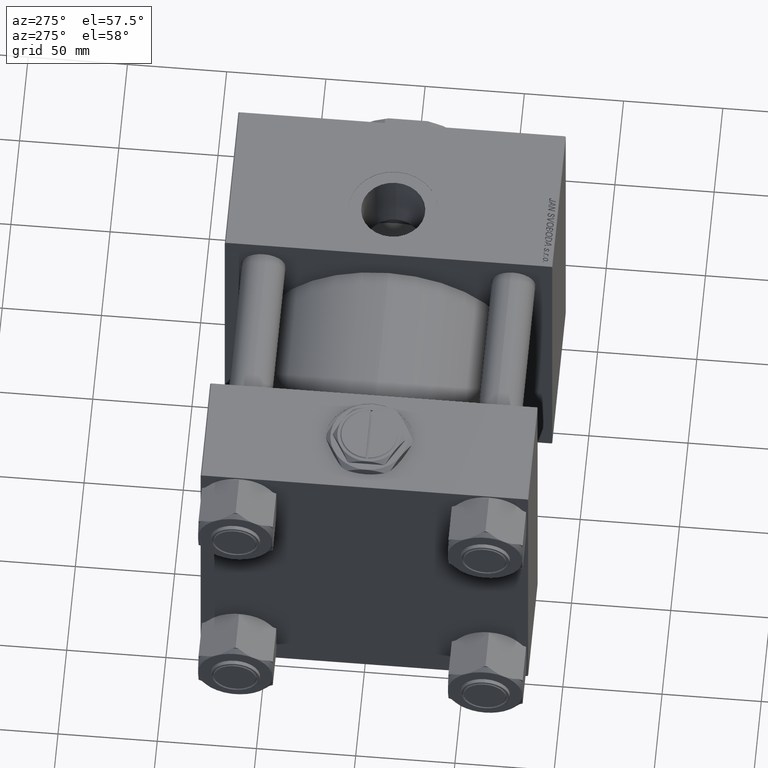
[diagram: clean part render]
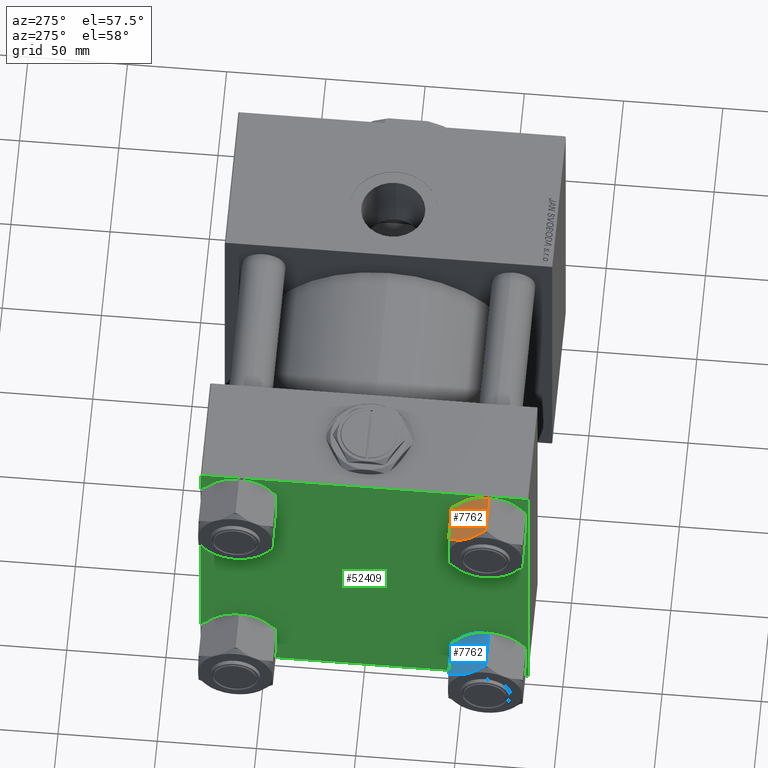
[diagram: same view with three faces highlighted in distinct colors, each labeled with its STEP entity id]
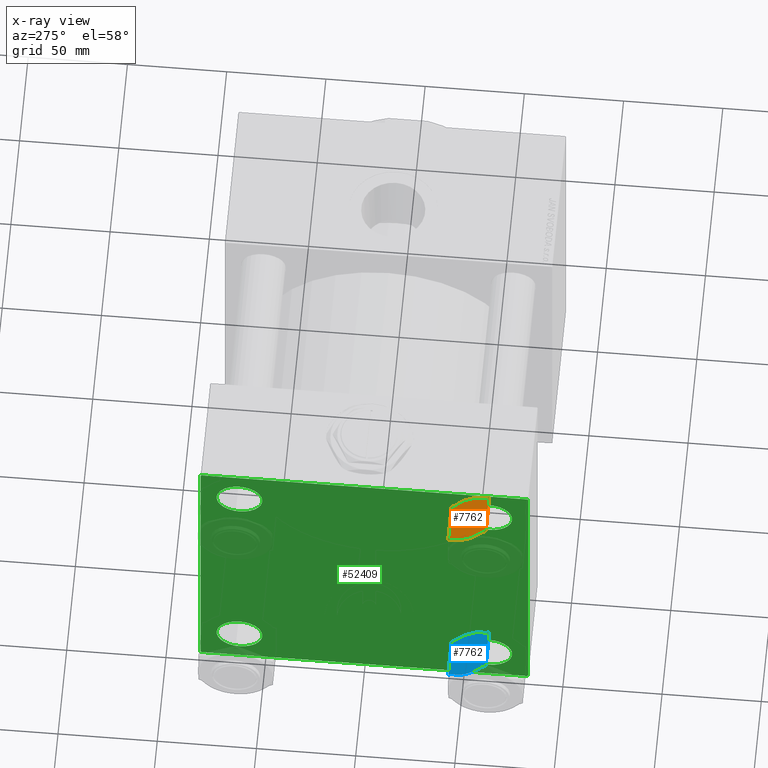
[diagram: x-ray of the same camera — body ghosted, the three highlighted faces saturated]
A machine part, auxiliary view with three faces highlighted in distinct colors.
The next image is the same camera in x-ray (body ghosted, the three faces saturated) — at least one of them is partly hidden behind the body in this view.
Their STEP definitions:

[orange] entity #7762 — the highlighted planar face has unit normal (-0, -0.5, -0.866).
#28 = DIRECTION ( 'NONE',  ( -0.000000000000000000, -0.000000000000000000, 1.000000000000000000 ) ) ;
#32 = CARTESIAN_POINT ( 'NONE',  ( -11.77388873931088220, -17.05396496048960842, -2.000000000000000000 ) ) ;
#289 = EDGE_CURVE ( 'NONE', #42513, #12380, #19918, .T. ) ;
#690 = ORIENTED_EDGE ( 'NONE', *, *, #13788, .F. ) ;
#2015 = CARTESIAN_POINT ( 'NONE',  ( -17.73599980468855009, -6.727285674886870126, -23.80918115964520965 ) ) ;
#2282 = CARTESIAN_POINT ( 'NONE',  ( -19.94246781890516118, -2.905570968988092861, -22.58212083167677875 ) ) ;
#3264 = ORIENTED_EDGE ( 'NONE', *, *, #289, .F. ) ;
#3309 = CARTESIAN_POINT ( 'NONE',  ( -19.94878361794604515, -2.894631684158861074, -1.393668941363769287 ) ) ;
#4403 = B_SPLINE_CURVE_WITH_KNOTS ( 'NONE', 3,
 ( #33030, #49237, #12818, #29043, #42765, #18585, #7121, #19115, #18322, #11111 ),
 .UNSPECIFIED., .F., .F.,
 ( 4, 2, 2, 2, 4 ),
 ( 5.007809737530463276E-07, 0.004555175037830402722, 0.006832512166258727059, 0.007971180730472890094, 0.009109849294687053997 ),
 .UNSPECIFIED. ) ;
#5165 = VERTEX_POINT ( 'NONE', #37017 ) ;
#5466 = VECTOR ( 'NONE', #21141, 1000.000000000000000 ) ;
#6129 = FACE_OUTER_BOUND ( 'NONE', #52000, .T. ) ;
#6216 = VERTEX_POINT ( 'NONE', #24799 ) ;
#6321 = CARTESIAN_POINT ( 'NONE',  ( -20.65611126068911929, -1.669504269329938229, -22.00000000000000000 ) ) ;
#7121 = CARTESIAN_POINT ( 'NONE',  ( -15.44401067499412861, -10.69712729791319283, -23.94054132287643810 ) ) ;
#7298 = CARTESIAN_POINT ( 'NONE',  ( -20.65611126068912284, -1.669504269329930457, -2.000000000000000000 ) ) ;
#7480 = CARTESIAN_POINT ( 'NONE',  ( -12.48753218109485275, -15.81789826083145378, -1.417879168323221251 ) ) ;
#7762 = ADVANCED_FACE ( 'NONE', ( #6129 ), #34337, .F. ) ;
#8244 = CARTESIAN_POINT ( 'NONE',  ( -10.81000000000000227, -18.72346922981957107, -22.00000000000000000 ) ) ;
#8501 = DIRECTION ( 'NONE',  ( -0.4999999999999993894, 0.8660254037844389297, 0.000000000000000000 ) ) ;
#10005 = CARTESIAN_POINT ( 'NONE',  ( -18.84657086838735296, -4.803720167144746256, -23.28765129395944911 ) ) ;
#10140 = EDGE_CURVE ( 'NONE', #6216, #13995, #11650, .T. ) ;
#11111 = CARTESIAN_POINT ( 'NONE',  ( -16.21500000000001052, -9.361734614909773100, -24.00000000000000000 ) ) ;
#11650 = LINE ( 'NONE', #23882, #27896 ) ;
#11995 = CARTESIAN_POINT ( 'NONE',  ( -13.21634051119548836, -14.55556520411771970, -0.9250850388960920601 ) ) ;
#12174 = VERTEX_POINT ( 'NONE', #30136 ) ;
#12232 = ORIENTED_EDGE ( 'NONE', *, *, #16636, .F. ) ;
#12380 = VERTEX_POINT ( 'NONE', #6321 ) ;
#12528 = LINE ( 'NONE', #47901, #15639 ) ;
#12818 = CARTESIAN_POINT ( 'NONE',  ( -13.20154625327793774, -14.58118961049119022, -23.10638014572221621 ) ) ;
#13788 = EDGE_CURVE ( 'NONE', #40225, #5165, #38549, .T. ) ;
#13995 = VERTEX_POINT ( 'NONE', #42092 ) ;
#15287 = CARTESIAN_POINT ( 'NONE',  ( -16.60104632518793011, -8.693082765609036144, -0.01197337667081199535 ) ) ;
#15564 = VECTOR ( 'NONE', #28, 1000.000000000000000 ) ;
#15639 = VECTOR ( 'NONE', #32205, 1000.000000000000114 ) ;
#15829 = ORIENTED_EDGE ( 'NONE', *, *, #29970, .F. ) ;
#16127 = AXIS2_PLACEMENT_3D ( 'NONE', #22097, #46274, #25556 ) ;
#16636 = EDGE_CURVE ( 'NONE', #38052, #40225, #12528, .T. ) ;
#16705 = EDGE_CURVE ( 'NONE', #5165, #52386, #38364, .T. ) ;
#16968 = CARTESIAN_POINT ( 'NONE',  ( -11.77388873931088220, -17.05396496048960842, -2.000000000000000000 ) ) ;
#17528 = VERTEX_POINT ( 'NONE', #23453 ) ;
#18322 = CARTESIAN_POINT ( 'NONE',  ( -16.02284832181304708, -9.694551084289205534, -24.00000000000001066 ) ) ;
#18585 = CARTESIAN_POINT ( 'NONE',  ( -15.25296234352183156, -11.02803271472447300, -23.90516550165012788 ) ) ;
#18792 = CARTESIAN_POINT ( 'NONE',  ( -20.65611126068911929, -1.669504269329938229, -22.00000000000000000 ) ) ;
#19024 = CARTESIAN_POINT ( 'NONE',  ( -19.22845374672207441, -4.142279619328344431, -0.8936198542777825660 ) ) ;
#19115 = CARTESIAN_POINT ( 'NONE',  ( -15.82895367481208737, -10.03038646421050650, -23.98802662332918700 ) ) ;
#19127 = DIRECTION ( 'NONE',  ( -0.4999999999999993894, 0.8660254037844389297, 0.000000000000000000 ) ) ;
#19553 = CARTESIAN_POINT ( 'NONE',  ( -17.17703765647818770, -7.695436515095067875, -0.09483449834988089133 ) ) ;
#19811 = CARTESIAN_POINT ( 'NONE',  ( -18.12021770021052802, -6.061800758665592426, -0.3703068632035558805 ) ) ;
#19918 = B_SPLINE_CURVE_WITH_KNOTS ( 'NONE', 3,
 ( #22246, #46424, #2015, #10005, #46158, #2282, #25704, #18792 ),
 .UNSPECIFIED., .F., .F.,
 ( 4, 2, 2, 4 ),
 ( 0.009109849294687053997, 0.01366157320126713468, 0.01593743515455717588, 0.01821329710784721362 ),
 .UNSPECIFIED. ) ;
#21141 = DIRECTION ( 'NONE',  ( -0.000000000000000000, -0.000000000000000000, 1.000000000000000000 ) ) ;
#22097 = CARTESIAN_POINT ( 'NONE',  ( -10.81000000000000227, -18.72346922981957107, -24.00000000000000000 ) ) ;
#22246 = CARTESIAN_POINT ( 'NONE',  ( -16.21500000000001052, -9.361734614909773100, -24.00000000000000000 ) ) ;
#23453 = CARTESIAN_POINT ( 'NONE',  ( -10.81000000000000227, -18.72346922981957107, -2.000000000000001776 ) ) ;
#23882 = CARTESIAN_POINT ( 'NONE',  ( -10.81000000000000227, -18.72346922981957107, -22.00000000000000000 ) ) ;
#23966 = CARTESIAN_POINT ( 'NONE',  ( -14.69400019531146029, -11.99618355493266897, -0.1908188403547822765 ) ) ;
#24504 = ORIENTED_EDGE ( 'NONE', *, *, #47738, .T. ) ;
#24759 = LINE ( 'NONE', #45461, #15564 ) ;
#24799 = CARTESIAN_POINT ( 'NONE',  ( -10.81000000000000227, -18.72346922981957107, -22.00000000000000000 ) ) ;
#25556 = DIRECTION ( 'NONE',  ( -0.4999999999999993894, 0.8660254037844389297, 0.000000000000000000 ) ) ;
#25704 = CARTESIAN_POINT ( 'NONE',  ( -20.30204076991168449, -2.282772348817324382, -22.30351413196914478 ) ) ;
#26723 = CARTESIAN_POINT ( 'NONE',  ( -17.74616263960890805, -6.709683128455873558, -0.2338220771833849909 ) ) ;
#27696 = CARTESIAN_POINT ( 'NONE',  ( -16.21500000000001762, -9.361734614909776653, 0.000000000000000000 ) ) ;
#27896 = VECTOR ( 'NONE', #19127, 1000.000000000000114 ) ;
#28221 = CARTESIAN_POINT ( 'NONE',  ( -12.12795923008832943, -16.44069688100223203, -1.696485868030861432 ) ) ;
#28277 = ORIENTED_EDGE ( 'NONE', *, *, #28282, .F. ) ;
#28282 = EDGE_CURVE ( 'NONE', #13995, #42513, #4403, .T. ) ;
#28794 = ORIENTED_EDGE ( 'NONE', *, *, #46213, .F. ) ;
#29043 = CARTESIAN_POINT ( 'NONE',  ( -14.30978229978947347, -12.66166847115393956, -23.62969313679643335 ) ) ;
#29113 = LINE ( 'NONE', #48789, #5466 ) ;
#29233 = VECTOR ( 'NONE', #8501, 1000.000000000000114 ) ;
#29970 = EDGE_CURVE ( 'NONE', #52386, #17528, #51166, .T. ) ;
#30136 = CARTESIAN_POINT ( 'NONE',  ( -21.62000000000000099, 1.669698520835173435E-14, -22.00000000000000000 ) ) ;
#30970 = DIRECTION ( 'NONE',  ( 0.4999999999999993894, -0.8660254037844389297, 0.000000000000000000 ) ) ;
#32205 = DIRECTION ( 'NONE',  ( 0.4999999999999993894, -0.8660254037844389297, 0.000000000000000000 ) ) ;
#33030 = CARTESIAN_POINT ( 'NONE',  ( -11.77388873931088575, -17.05396496048960131, -22.00000000000000000 ) ) ;
#33820 = ORIENTED_EDGE ( 'NONE', *, *, #49885, .F. ) ;
#33822 = VECTOR ( 'NONE', #30970, 1000.000000000000114 ) ;
#34337 = PLANE ( 'NONE',  #16127 ) ;
#35236 = CARTESIAN_POINT ( 'NONE',  ( -16.21500000000001762, -9.361734614909776653, 0.000000000000000000 ) ) ;
#37017 = CARTESIAN_POINT ( 'NONE',  ( -16.21500000000001762, -9.361734614909776653, 0.000000000000000000 ) ) ;
#38052 = VERTEX_POINT ( 'NONE', #50648 ) ;
#38364 = B_SPLINE_CURVE_WITH_KNOTS ( 'NONE', 3,
 ( #27696, #43904, #23966, #40982, #11995, #7480, #28221, #32 ),
 .UNSPECIFIED., .F., .F.,
 ( 4, 2, 2, 4 ),
 ( 0.009109849294687066140, 0.01366157320126715896, 0.01593743515455720364, 0.01821329710784724484 ),
 .UNSPECIFIED. ) ;
#38549 = B_SPLINE_CURVE_WITH_KNOTS ( 'NONE', 3,
 ( #7298, #3309, #19024, #19811, #26723, #19553, #43726, #15287, #47186, #35236 ),
 .UNSPECIFIED., .F., .F.,
 ( 4, 2, 2, 2, 4 ),
 ( 5.007809737585758646E-07, 0.004555175037830412263, 0.006832512166258740936, 0.007971180730472903972, 0.009109849294687066140 ),
 .UNSPECIFIED. ) ;
#40225 = VERTEX_POINT ( 'NONE', #50202 ) ;
#40982 = CARTESIAN_POINT ( 'NONE',  ( -13.58342913161266807, -13.91974906267480350, -0.7123487060405448990 ) ) ;
#42092 = CARTESIAN_POINT ( 'NONE',  ( -11.77388873931088575, -17.05396496048960131, -22.00000000000000000 ) ) ;
#42513 = VERTEX_POINT ( 'NONE', #44661 ) ;
#42765 = CARTESIAN_POINT ( 'NONE',  ( -14.68383736039110588, -12.01378610136366376, -23.76617792281660613 ) ) ;
#43554 = ORIENTED_EDGE ( 'NONE', *, *, #16705, .F. ) ;
#43726 = CARTESIAN_POINT ( 'NONE',  ( -16.98598932500589598, -8.026341931906348037, -0.05945867712355460549 ) ) ;
#43904 = CARTESIAN_POINT ( 'NONE',  ( -15.44689116237993076, -10.69213814741041624, 1.408785197873352008E-14 ) ) ;
#44661 = CARTESIAN_POINT ( 'NONE',  ( -16.21500000000001052, -9.361734614909773100, -24.00000000000000000 ) ) ;
#45461 = CARTESIAN_POINT ( 'NONE',  ( -10.81000000000000227, -18.72346922981957107, -24.00000000000000000 ) ) ;
#46158 = CARTESIAN_POINT ( 'NONE',  ( -19.21365948880452379, -4.167904025701830051, -23.07491496110390017 ) ) ;
#46213 = EDGE_CURVE ( 'NONE', #12174, #38052, #29113, .T. ) ;
#46274 = DIRECTION ( 'NONE',  ( 0.8660254037844390407, 0.4999999999999994449, 0.000000000000000000 ) ) ;
#46424 = CARTESIAN_POINT ( 'NONE',  ( -16.98310883762008316, -8.031331082409129962, -24.00000000000001066 ) ) ;
#47186 = CARTESIAN_POINT ( 'NONE',  ( -16.40715167818697040, -9.028918145530337114, 1.384475352287154220E-14 ) ) ;
#47738 = EDGE_CURVE ( 'NONE', #6216, #17528, #24759, .T. ) ;
#47901 = CARTESIAN_POINT ( 'NONE',  ( -10.81000000000000227, -18.72346922981957107, -2.000000000000001776 ) ) ;
#48789 = CARTESIAN_POINT ( 'NONE',  ( -21.62000000000000099, 1.669698520835173435E-14, -24.00000000000000000 ) ) ;
#49041 = ORIENTED_EDGE ( 'NONE', *, *, #10140, .F. ) ;
#49237 = CARTESIAN_POINT ( 'NONE',  ( -12.48121638205396522, -15.82883754566067402, -22.60633105863623271 ) ) ;
#49885 = EDGE_CURVE ( 'NONE', #12380, #12174, #51667, .T. ) ;
#50202 = CARTESIAN_POINT ( 'NONE',  ( -20.65611126068912284, -1.669504269329930457, -2.000000000000000000 ) ) ;
#50648 = CARTESIAN_POINT ( 'NONE',  ( -21.62000000000000099, 1.669698520835173435E-14, -2.000000000000001776 ) ) ;
#51166 = LINE ( 'NONE', #51956, #33822 ) ;
#51667 = LINE ( 'NONE', #8244, #29233 ) ;
#51956 = CARTESIAN_POINT ( 'NONE',  ( -10.81000000000000227, -18.72346922981957107, -2.000000000000001776 ) ) ;
#52000 = EDGE_LOOP ( 'NONE', ( #49041, #24504, #15829, #43554, #690, #12232, #28794, #33820, #3264, #28277 ) ) ;
#52386 = VERTEX_POINT ( 'NONE', #16968 ) ;

[blue] entity #7762 — the highlighted planar face has unit normal (-0, -0.5, -0.866).
#28 = DIRECTION ( 'NONE',  ( -0.000000000000000000, -0.000000000000000000, 1.000000000000000000 ) ) ;
#32 = CARTESIAN_POINT ( 'NONE',  ( -11.77388873931088220, -17.05396496048960842, -2.000000000000000000 ) ) ;
#289 = EDGE_CURVE ( 'NONE', #42513, #12380, #19918, .T. ) ;
#690 = ORIENTED_EDGE ( 'NONE', *, *, #13788, .F. ) ;
#2015 = CARTESIAN_POINT ( 'NONE',  ( -17.73599980468855009, -6.727285674886870126, -23.80918115964520965 ) ) ;
#2282 = CARTESIAN_POINT ( 'NONE',  ( -19.94246781890516118, -2.905570968988092861, -22.58212083167677875 ) ) ;
#3264 = ORIENTED_EDGE ( 'NONE', *, *, #289, .F. ) ;
#3309 = CARTESIAN_POINT ( 'NONE',  ( -19.94878361794604515, -2.894631684158861074, -1.393668941363769287 ) ) ;
#4403 = B_SPLINE_CURVE_WITH_KNOTS ( 'NONE', 3,
 ( #33030, #49237, #12818, #29043, #42765, #18585, #7121, #19115, #18322, #11111 ),
 .UNSPECIFIED., .F., .F.,
 ( 4, 2, 2, 2, 4 ),
 ( 5.007809737530463276E-07, 0.004555175037830402722, 0.006832512166258727059, 0.007971180730472890094, 0.009109849294687053997 ),
 .UNSPECIFIED. ) ;
#5165 = VERTEX_POINT ( 'NONE', #37017 ) ;
#5466 = VECTOR ( 'NONE', #21141, 1000.000000000000000 ) ;
#6129 = FACE_OUTER_BOUND ( 'NONE', #52000, .T. ) ;
#6216 = VERTEX_POINT ( 'NONE', #24799 ) ;
#6321 = CARTESIAN_POINT ( 'NONE',  ( -20.65611126068911929, -1.669504269329938229, -22.00000000000000000 ) ) ;
#7121 = CARTESIAN_POINT ( 'NONE',  ( -15.44401067499412861, -10.69712729791319283, -23.94054132287643810 ) ) ;
#7298 = CARTESIAN_POINT ( 'NONE',  ( -20.65611126068912284, -1.669504269329930457, -2.000000000000000000 ) ) ;
#7480 = CARTESIAN_POINT ( 'NONE',  ( -12.48753218109485275, -15.81789826083145378, -1.417879168323221251 ) ) ;
#7762 = ADVANCED_FACE ( 'NONE', ( #6129 ), #34337, .F. ) ;
#8244 = CARTESIAN_POINT ( 'NONE',  ( -10.81000000000000227, -18.72346922981957107, -22.00000000000000000 ) ) ;
#8501 = DIRECTION ( 'NONE',  ( -0.4999999999999993894, 0.8660254037844389297, 0.000000000000000000 ) ) ;
#10005 = CARTESIAN_POINT ( 'NONE',  ( -18.84657086838735296, -4.803720167144746256, -23.28765129395944911 ) ) ;
#10140 = EDGE_CURVE ( 'NONE', #6216, #13995, #11650, .T. ) ;
#11111 = CARTESIAN_POINT ( 'NONE',  ( -16.21500000000001052, -9.361734614909773100, -24.00000000000000000 ) ) ;
#11650 = LINE ( 'NONE', #23882, #27896 ) ;
#11995 = CARTESIAN_POINT ( 'NONE',  ( -13.21634051119548836, -14.55556520411771970, -0.9250850388960920601 ) ) ;
#12174 = VERTEX_POINT ( 'NONE', #30136 ) ;
#12232 = ORIENTED_EDGE ( 'NONE', *, *, #16636, .F. ) ;
#12380 = VERTEX_POINT ( 'NONE', #6321 ) ;
#12528 = LINE ( 'NONE', #47901, #15639 ) ;
#12818 = CARTESIAN_POINT ( 'NONE',  ( -13.20154625327793774, -14.58118961049119022, -23.10638014572221621 ) ) ;
#13788 = EDGE_CURVE ( 'NONE', #40225, #5165, #38549, .T. ) ;
#13995 = VERTEX_POINT ( 'NONE', #42092 ) ;
#15287 = CARTESIAN_POINT ( 'NONE',  ( -16.60104632518793011, -8.693082765609036144, -0.01197337667081199535 ) ) ;
#15564 = VECTOR ( 'NONE', #28, 1000.000000000000000 ) ;
#15639 = VECTOR ( 'NONE', #32205, 1000.000000000000114 ) ;
#15829 = ORIENTED_EDGE ( 'NONE', *, *, #29970, .F. ) ;
#16127 = AXIS2_PLACEMENT_3D ( 'NONE', #22097, #46274, #25556 ) ;
#16636 = EDGE_CURVE ( 'NONE', #38052, #40225, #12528, .T. ) ;
#16705 = EDGE_CURVE ( 'NONE', #5165, #52386, #38364, .T. ) ;
#16968 = CARTESIAN_POINT ( 'NONE',  ( -11.77388873931088220, -17.05396496048960842, -2.000000000000000000 ) ) ;
#17528 = VERTEX_POINT ( 'NONE', #23453 ) ;
#18322 = CARTESIAN_POINT ( 'NONE',  ( -16.02284832181304708, -9.694551084289205534, -24.00000000000001066 ) ) ;
#18585 = CARTESIAN_POINT ( 'NONE',  ( -15.25296234352183156, -11.02803271472447300, -23.90516550165012788 ) ) ;
#18792 = CARTESIAN_POINT ( 'NONE',  ( -20.65611126068911929, -1.669504269329938229, -22.00000000000000000 ) ) ;
#19024 = CARTESIAN_POINT ( 'NONE',  ( -19.22845374672207441, -4.142279619328344431, -0.8936198542777825660 ) ) ;
#19115 = CARTESIAN_POINT ( 'NONE',  ( -15.82895367481208737, -10.03038646421050650, -23.98802662332918700 ) ) ;
#19127 = DIRECTION ( 'NONE',  ( -0.4999999999999993894, 0.8660254037844389297, 0.000000000000000000 ) ) ;
#19553 = CARTESIAN_POINT ( 'NONE',  ( -17.17703765647818770, -7.695436515095067875, -0.09483449834988089133 ) ) ;
#19811 = CARTESIAN_POINT ( 'NONE',  ( -18.12021770021052802, -6.061800758665592426, -0.3703068632035558805 ) ) ;
#19918 = B_SPLINE_CURVE_WITH_KNOTS ( 'NONE', 3,
 ( #22246, #46424, #2015, #10005, #46158, #2282, #25704, #18792 ),
 .UNSPECIFIED., .F., .F.,
 ( 4, 2, 2, 4 ),
 ( 0.009109849294687053997, 0.01366157320126713468, 0.01593743515455717588, 0.01821329710784721362 ),
 .UNSPECIFIED. ) ;
#21141 = DIRECTION ( 'NONE',  ( -0.000000000000000000, -0.000000000000000000, 1.000000000000000000 ) ) ;
#22097 = CARTESIAN_POINT ( 'NONE',  ( -10.81000000000000227, -18.72346922981957107, -24.00000000000000000 ) ) ;
#22246 = CARTESIAN_POINT ( 'NONE',  ( -16.21500000000001052, -9.361734614909773100, -24.00000000000000000 ) ) ;
#23453 = CARTESIAN_POINT ( 'NONE',  ( -10.81000000000000227, -18.72346922981957107, -2.000000000000001776 ) ) ;
#23882 = CARTESIAN_POINT ( 'NONE',  ( -10.81000000000000227, -18.72346922981957107, -22.00000000000000000 ) ) ;
#23966 = CARTESIAN_POINT ( 'NONE',  ( -14.69400019531146029, -11.99618355493266897, -0.1908188403547822765 ) ) ;
#24504 = ORIENTED_EDGE ( 'NONE', *, *, #47738, .T. ) ;
#24759 = LINE ( 'NONE', #45461, #15564 ) ;
#24799 = CARTESIAN_POINT ( 'NONE',  ( -10.81000000000000227, -18.72346922981957107, -22.00000000000000000 ) ) ;
#25556 = DIRECTION ( 'NONE',  ( -0.4999999999999993894, 0.8660254037844389297, 0.000000000000000000 ) ) ;
#25704 = CARTESIAN_POINT ( 'NONE',  ( -20.30204076991168449, -2.282772348817324382, -22.30351413196914478 ) ) ;
#26723 = CARTESIAN_POINT ( 'NONE',  ( -17.74616263960890805, -6.709683128455873558, -0.2338220771833849909 ) ) ;
#27696 = CARTESIAN_POINT ( 'NONE',  ( -16.21500000000001762, -9.361734614909776653, 0.000000000000000000 ) ) ;
#27896 = VECTOR ( 'NONE', #19127, 1000.000000000000114 ) ;
#28221 = CARTESIAN_POINT ( 'NONE',  ( -12.12795923008832943, -16.44069688100223203, -1.696485868030861432 ) ) ;
#28277 = ORIENTED_EDGE ( 'NONE', *, *, #28282, .F. ) ;
#28282 = EDGE_CURVE ( 'NONE', #13995, #42513, #4403, .T. ) ;
#28794 = ORIENTED_EDGE ( 'NONE', *, *, #46213, .F. ) ;
#29043 = CARTESIAN_POINT ( 'NONE',  ( -14.30978229978947347, -12.66166847115393956, -23.62969313679643335 ) ) ;
#29113 = LINE ( 'NONE', #48789, #5466 ) ;
#29233 = VECTOR ( 'NONE', #8501, 1000.000000000000114 ) ;
#29970 = EDGE_CURVE ( 'NONE', #52386, #17528, #51166, .T. ) ;
#30136 = CARTESIAN_POINT ( 'NONE',  ( -21.62000000000000099, 1.669698520835173435E-14, -22.00000000000000000 ) ) ;
#30970 = DIRECTION ( 'NONE',  ( 0.4999999999999993894, -0.8660254037844389297, 0.000000000000000000 ) ) ;
#32205 = DIRECTION ( 'NONE',  ( 0.4999999999999993894, -0.8660254037844389297, 0.000000000000000000 ) ) ;
#33030 = CARTESIAN_POINT ( 'NONE',  ( -11.77388873931088575, -17.05396496048960131, -22.00000000000000000 ) ) ;
#33820 = ORIENTED_EDGE ( 'NONE', *, *, #49885, .F. ) ;
#33822 = VECTOR ( 'NONE', #30970, 1000.000000000000114 ) ;
#34337 = PLANE ( 'NONE',  #16127 ) ;
#35236 = CARTESIAN_POINT ( 'NONE',  ( -16.21500000000001762, -9.361734614909776653, 0.000000000000000000 ) ) ;
#37017 = CARTESIAN_POINT ( 'NONE',  ( -16.21500000000001762, -9.361734614909776653, 0.000000000000000000 ) ) ;
#38052 = VERTEX_POINT ( 'NONE', #50648 ) ;
#38364 = B_SPLINE_CURVE_WITH_KNOTS ( 'NONE', 3,
 ( #27696, #43904, #23966, #40982, #11995, #7480, #28221, #32 ),
 .UNSPECIFIED., .F., .F.,
 ( 4, 2, 2, 4 ),
 ( 0.009109849294687066140, 0.01366157320126715896, 0.01593743515455720364, 0.01821329710784724484 ),
 .UNSPECIFIED. ) ;
#38549 = B_SPLINE_CURVE_WITH_KNOTS ( 'NONE', 3,
 ( #7298, #3309, #19024, #19811, #26723, #19553, #43726, #15287, #47186, #35236 ),
 .UNSPECIFIED., .F., .F.,
 ( 4, 2, 2, 2, 4 ),
 ( 5.007809737585758646E-07, 0.004555175037830412263, 0.006832512166258740936, 0.007971180730472903972, 0.009109849294687066140 ),
 .UNSPECIFIED. ) ;
#40225 = VERTEX_POINT ( 'NONE', #50202 ) ;
#40982 = CARTESIAN_POINT ( 'NONE',  ( -13.58342913161266807, -13.91974906267480350, -0.7123487060405448990 ) ) ;
#42092 = CARTESIAN_POINT ( 'NONE',  ( -11.77388873931088575, -17.05396496048960131, -22.00000000000000000 ) ) ;
#42513 = VERTEX_POINT ( 'NONE', #44661 ) ;
#42765 = CARTESIAN_POINT ( 'NONE',  ( -14.68383736039110588, -12.01378610136366376, -23.76617792281660613 ) ) ;
#43554 = ORIENTED_EDGE ( 'NONE', *, *, #16705, .F. ) ;
#43726 = CARTESIAN_POINT ( 'NONE',  ( -16.98598932500589598, -8.026341931906348037, -0.05945867712355460549 ) ) ;
#43904 = CARTESIAN_POINT ( 'NONE',  ( -15.44689116237993076, -10.69213814741041624, 1.408785197873352008E-14 ) ) ;
#44661 = CARTESIAN_POINT ( 'NONE',  ( -16.21500000000001052, -9.361734614909773100, -24.00000000000000000 ) ) ;
#45461 = CARTESIAN_POINT ( 'NONE',  ( -10.81000000000000227, -18.72346922981957107, -24.00000000000000000 ) ) ;
#46158 = CARTESIAN_POINT ( 'NONE',  ( -19.21365948880452379, -4.167904025701830051, -23.07491496110390017 ) ) ;
#46213 = EDGE_CURVE ( 'NONE', #12174, #38052, #29113, .T. ) ;
#46274 = DIRECTION ( 'NONE',  ( 0.8660254037844390407, 0.4999999999999994449, 0.000000000000000000 ) ) ;
#46424 = CARTESIAN_POINT ( 'NONE',  ( -16.98310883762008316, -8.031331082409129962, -24.00000000000001066 ) ) ;
#47186 = CARTESIAN_POINT ( 'NONE',  ( -16.40715167818697040, -9.028918145530337114, 1.384475352287154220E-14 ) ) ;
#47738 = EDGE_CURVE ( 'NONE', #6216, #17528, #24759, .T. ) ;
#47901 = CARTESIAN_POINT ( 'NONE',  ( -10.81000000000000227, -18.72346922981957107, -2.000000000000001776 ) ) ;
#48789 = CARTESIAN_POINT ( 'NONE',  ( -21.62000000000000099, 1.669698520835173435E-14, -24.00000000000000000 ) ) ;
#49041 = ORIENTED_EDGE ( 'NONE', *, *, #10140, .F. ) ;
#49237 = CARTESIAN_POINT ( 'NONE',  ( -12.48121638205396522, -15.82883754566067402, -22.60633105863623271 ) ) ;
#49885 = EDGE_CURVE ( 'NONE', #12380, #12174, #51667, .T. ) ;
#50202 = CARTESIAN_POINT ( 'NONE',  ( -20.65611126068912284, -1.669504269329930457, -2.000000000000000000 ) ) ;
#50648 = CARTESIAN_POINT ( 'NONE',  ( -21.62000000000000099, 1.669698520835173435E-14, -2.000000000000001776 ) ) ;
#51166 = LINE ( 'NONE', #51956, #33822 ) ;
#51667 = LINE ( 'NONE', #8244, #29233 ) ;
#51956 = CARTESIAN_POINT ( 'NONE',  ( -10.81000000000000227, -18.72346922981957107, -2.000000000000001776 ) ) ;
#52000 = EDGE_LOOP ( 'NONE', ( #49041, #24504, #15829, #43554, #690, #12232, #28794, #33820, #3264, #28277 ) ) ;
#52386 = VERTEX_POINT ( 'NONE', #16968 ) ;

[green] entity #52409 — the highlighted planar face has unit normal (-1, 0, 0).
#82 = EDGE_LOOP ( 'NONE', ( #1360, #40019, #11699, #44521, #18195, #28084, #35476, #50096 ) ) ;
#409 = VECTOR ( 'NONE', #19424, 1000.000000000000114 ) ;
#1283 = LINE ( 'NONE', #17532, #8504 ) ;
#1360 = ORIENTED_EDGE ( 'NONE', *, *, #12076, .T. ) ;
#1467 = CARTESIAN_POINT ( 'NONE',  ( 0.000000000000000000, -82.49999999999997158, 82.00000000000001421 ) ) ;
#2144 = ORIENTED_EDGE ( 'NONE', *, *, #12736, .T. ) ;
#2365 = CARTESIAN_POINT ( 'NONE',  ( 0.000000000000000000, 82.50000000000002842, -82.00000000000000000 ) ) ;
#2835 = CARTESIAN_POINT ( 'NONE',  ( 0.000000000000000000, -62.94999999999998153, -62.95000000000001705 ) ) ;
#3092 = AXIS2_PLACEMENT_3D ( 'NONE', #29980, #10286, #17758 ) ;
#3183 = CARTESIAN_POINT ( 'NONE',  ( 0.000000000000000000, -82.25000000000000000, 82.25000000000000000 ) ) ;
#3503 = DIRECTION ( 'NONE',  ( 0.000000000000000000, 0.000000000000000000, 1.000000000000000000 ) ) ;
#4507 = VERTEX_POINT ( 'NONE', #1467 ) ;
#4746 = CARTESIAN_POINT ( 'NONE',  ( 0.000000000000000000, -62.94999999999998153, 74.45000000000003126 ) ) ;
#5012 = DIRECTION ( 'NONE',  ( 0.000000000000000000, 0.000000000000000000, 1.000000000000000000 ) ) ;
#5506 = CARTESIAN_POINT ( 'NONE',  ( 0.000000000000000000, 82.00000000000005684, 82.50000000000002842 ) ) ;
#5582 = EDGE_CURVE ( 'NONE', #47162, #33334, #1283, .T. ) ;
#6231 = DIRECTION ( 'NONE',  ( 0.000000000000000000, 0.000000000000000000, 1.000000000000000000 ) ) ;
#6311 = CARTESIAN_POINT ( 'NONE',  ( 0.000000000000000000, -62.94999999999998153, 51.45000000000000995 ) ) ;
#6517 = DIRECTION ( 'NONE',  ( 0.000000000000000000, 0.000000000000000000, -1.000000000000000000 ) ) ;
#6942 = CIRCLE ( 'NONE', #20559, 11.50000000000001066 ) ;
#7493 = CARTESIAN_POINT ( 'NONE',  ( 0.000000000000000000, 62.95000000000000284, -62.95000000000000284 ) ) ;
#7613 = DIRECTION ( 'NONE',  ( 0.000000000000000000, -1.000000000000000000, -1.682156097916903588E-16 ) ) ;
#8119 = VERTEX_POINT ( 'NONE', #30793 ) ;
#8147 = CARTESIAN_POINT ( 'NONE',  ( 0.000000000000000000, 62.95000000000000284, 51.44999999999999574 ) ) ;
#8504 = VECTOR ( 'NONE', #33751, 1000.000000000000114 ) ;
#8607 = ORIENTED_EDGE ( 'NONE', *, *, #27447, .T. ) ;
#8808 = VERTEX_POINT ( 'NONE', #30604 ) ;
#9344 = CARTESIAN_POINT ( 'NONE',  ( 0.000000000000000000, -62.94999999999998153, -74.45000000000003126 ) ) ;
#10286 = DIRECTION ( 'NONE',  ( 1.000000000000000000, -0.000000000000000000, -0.000000000000000000 ) ) ;
#10923 = EDGE_CURVE ( 'NONE', #22133, #8808, #20128, .T. ) ;
#11214 = EDGE_CURVE ( 'NONE', #11896, #17072, #6942, .T. ) ;
#11699 = ORIENTED_EDGE ( 'NONE', *, *, #10923, .T. ) ;
#11896 = VERTEX_POINT ( 'NONE', #42158 ) ;
#11931 = CARTESIAN_POINT ( 'NONE',  ( 0.000000000000000000, 0.000000000000000000, 0.000000000000000000 ) ) ;
#12076 = EDGE_CURVE ( 'NONE', #33334, #37362, #47460, .T. ) ;
#12145 = AXIS2_PLACEMENT_3D ( 'NONE', #39719, #35726, #20038 ) ;
#12194 = DIRECTION ( 'NONE',  ( -1.000000000000000000, 0.000000000000000000, 0.000000000000000000 ) ) ;
#12736 = EDGE_CURVE ( 'NONE', #31726, #34355, #46908, .T. ) ;
#12868 = VECTOR ( 'NONE', #7613, 1000.000000000000000 ) ;
#13500 = EDGE_CURVE ( 'NONE', #28189, #35266, #47785, .T. ) ;
#14217 = CARTESIAN_POINT ( 'NONE',  ( 0.000000000000000000, -62.94999999999998153, -62.95000000000001705 ) ) ;
#14805 = CIRCLE ( 'NONE', #12145, 11.50000000000001066 ) ;
#14987 = EDGE_LOOP ( 'NONE', ( #32443, #15612 ) ) ;
#15029 = CIRCLE ( 'NONE', #48119, 11.50000000000001066 ) ;
#15337 = DIRECTION ( 'NONE',  ( 0.000000000000000000, 0.000000000000000000, 1.000000000000000000 ) ) ;
#15612 = ORIENTED_EDGE ( 'NONE', *, *, #13500, .T. ) ;
#15808 = EDGE_CURVE ( 'NONE', #47162, #49124, #43414, .T. ) ;
#15919 = FACE_OUTER_BOUND ( 'NONE', #82, .T. ) ;
#16380 = CARTESIAN_POINT ( 'NONE',  ( 0.000000000000000000, 82.25000000000001421, -82.25000000000001421 ) ) ;
#16917 = ORIENTED_EDGE ( 'NONE', *, *, #11214, .T. ) ;
#17072 = VERTEX_POINT ( 'NONE', #41624 ) ;
#17532 = CARTESIAN_POINT ( 'NONE',  ( 0.000000000000000000, 82.25000000000002842, 82.25000000000002842 ) ) ;
#17550 = ORIENTED_EDGE ( 'NONE', *, *, #46342, .T. ) ;
#17758 = DIRECTION ( 'NONE',  ( 0.000000000000000000, 0.000000000000000000, 1.000000000000000000 ) ) ;
#17786 = CARTESIAN_POINT ( 'NONE',  ( 0.000000000000000000, 62.95000000000000284, -62.95000000000000284 ) ) ;
#18195 = ORIENTED_EDGE ( 'NONE', *, *, #31685, .F. ) ;
#18767 = EDGE_CURVE ( 'NONE', #4507, #49124, #39620, .T. ) ;
#19424 = DIRECTION ( 'NONE',  ( -0.000000000000000000, 0.7071067811865474617, 0.7071067811865474617 ) ) ;
#19698 = CARTESIAN_POINT ( 'NONE',  ( 0.000000000000000000, -81.99999999999997158, 82.50000000000001421 ) ) ;
#19805 = AXIS2_PLACEMENT_3D ( 'NONE', #30664, #51653, #43672 ) ;
#20038 = DIRECTION ( 'NONE',  ( 0.000000000000000000, 0.000000000000000000, 1.000000000000000000 ) ) ;
#20120 = VECTOR ( 'NONE', #20317, 999.9999999999998863 ) ;
#20128 = LINE ( 'NONE', #32603, #12868 ) ;
#20317 = DIRECTION ( 'NONE',  ( 0.000000000000000000, -0.7071067811865376918, 0.7071067811865574537 ) ) ;
#20559 = AXIS2_PLACEMENT_3D ( 'NONE', #7493, #39945, #3503 ) ;
#20921 = EDGE_LOOP ( 'NONE', ( #16917, #8607 ) ) ;
#21224 = FACE_BOUND ( 'NONE', #27348, .T. ) ;
#22133 = VERTEX_POINT ( 'NONE', #29890 ) ;
#23428 = AXIS2_PLACEMENT_3D ( 'NONE', #11931, #12194, #24168 ) ;
#23802 = CARTESIAN_POINT ( 'NONE',  ( 0.000000000000000000, -62.94999999999998153, 62.95000000000001705 ) ) ;
#24168 = DIRECTION ( 'NONE',  ( 0.000000000000000000, 0.000000000000000000, 1.000000000000000000 ) ) ;
#24286 = CARTESIAN_POINT ( 'NONE',  ( 0.000000000000000000, 62.95000000000000284, 74.45000000000001705 ) ) ;
#24401 = AXIS2_PLACEMENT_3D ( 'NONE', #17786, #41193, #5012 ) ;
#25817 = CARTESIAN_POINT ( 'NONE',  ( 0.000000000000000000, -62.94999999999998153, -51.45000000000000995 ) ) ;
#26030 = CIRCLE ( 'NONE', #3092, 11.50000000000001066 ) ;
#26547 = EDGE_CURVE ( 'NONE', #35266, #28189, #15029, .T. ) ;
#26754 = EDGE_CURVE ( 'NONE', #8808, #8119, #32533, .T. ) ;
#26839 = CARTESIAN_POINT ( 'NONE',  ( 0.000000000000000000, 82.50000000000002842, 82.00000000000005684 ) ) ;
#26992 = CARTESIAN_POINT ( 'NONE',  ( 0.000000000000000000, 82.50000000000002842, 82.50000000000002842 ) ) ;
#27144 = EDGE_CURVE ( 'NONE', #39988, #46567, #26030, .T. ) ;
#27348 = EDGE_LOOP ( 'NONE', ( #2144, #46307 ) ) ;
#27447 = EDGE_CURVE ( 'NONE', #17072, #11896, #47318, .T. ) ;
#27790 = DIRECTION ( 'NONE',  ( 1.000000000000000000, -0.000000000000000000, -0.000000000000000000 ) ) ;
#28084 = ORIENTED_EDGE ( 'NONE', *, *, #18767, .T. ) ;
#28189 = VERTEX_POINT ( 'NONE', #9344 ) ;
#28615 = DIRECTION ( 'NONE',  ( -0.000000000000000000, -0.7071067811865474617, -0.7071067811865474617 ) ) ;
#29890 = CARTESIAN_POINT ( 'NONE',  ( 0.000000000000000000, 82.00000000000005684, -82.49999999999997158 ) ) ;
#29980 = CARTESIAN_POINT ( 'NONE',  ( 0.000000000000000000, 62.95000000000000284, 62.95000000000000284 ) ) ;
#30604 = CARTESIAN_POINT ( 'NONE',  ( 0.000000000000000000, -82.00000000000000000, -82.50000000000000000 ) ) ;
#30664 = CARTESIAN_POINT ( 'NONE',  ( 0.000000000000000000, -62.94999999999998153, 62.95000000000001705 ) ) ;
#30793 = CARTESIAN_POINT ( 'NONE',  ( 0.000000000000000000, -82.50000000000000000, -81.99999999999998579 ) ) ;
#30932 = CARTESIAN_POINT ( 'NONE',  ( 0.000000000000000000, 82.50000000000002842, 82.50000000000002842 ) ) ;
#31523 = VECTOR ( 'NONE', #28615, 1000.000000000000114 ) ;
#31685 = EDGE_CURVE ( 'NONE', #4507, #8119, #47850, .T. ) ;
#31726 = VERTEX_POINT ( 'NONE', #4746 ) ;
#32399 = PLANE ( 'NONE',  #23428 ) ;
#32443 = ORIENTED_EDGE ( 'NONE', *, *, #26547, .T. ) ;
#32533 = LINE ( 'NONE', #44227, #20120 ) ;
#32545 = CIRCLE ( 'NONE', #19805, 11.50000000000001066 ) ;
#32603 = CARTESIAN_POINT ( 'NONE',  ( 0.000000000000000000, 82.50000000000002842, -82.49999999999997158 ) ) ;
#33334 = VERTEX_POINT ( 'NONE', #26839 ) ;
#33751 = DIRECTION ( 'NONE',  ( 0.000000000000000000, 0.7071067811865474617, -0.7071067811865474617 ) ) ;
#34174 = DIRECTION ( 'NONE',  ( 1.000000000000000000, -0.000000000000000000, -0.000000000000000000 ) ) ;
#34355 = VERTEX_POINT ( 'NONE', #6311 ) ;
#34728 = DIRECTION ( 'NONE',  ( 0.000000000000000000, 0.000000000000000000, 1.000000000000000000 ) ) ;
#35266 = VERTEX_POINT ( 'NONE', #25817 ) ;
#35476 = ORIENTED_EDGE ( 'NONE', *, *, #15808, .F. ) ;
#35726 = DIRECTION ( 'NONE',  ( 1.000000000000000000, -0.000000000000000000, -0.000000000000000000 ) ) ;
#36717 = AXIS2_PLACEMENT_3D ( 'NONE', #23802, #27790, #34728 ) ;
#37179 = FACE_BOUND ( 'NONE', #14987, .T. ) ;
#37362 = VERTEX_POINT ( 'NONE', #2365 ) ;
#37890 = EDGE_CURVE ( 'NONE', #37362, #22133, #45071, .T. ) ;
#38103 = ORIENTED_EDGE ( 'NONE', *, *, #27144, .T. ) ;
#39620 = LINE ( 'NONE', #3183, #409 ) ;
#39719 = CARTESIAN_POINT ( 'NONE',  ( 0.000000000000000000, 62.95000000000000284, 62.95000000000000284 ) ) ;
#39801 = DIRECTION ( 'NONE',  ( 1.000000000000000000, -0.000000000000000000, -0.000000000000000000 ) ) ;
#39945 = DIRECTION ( 'NONE',  ( 1.000000000000000000, -0.000000000000000000, -0.000000000000000000 ) ) ;
#39988 = VERTEX_POINT ( 'NONE', #8147 ) ;
#40019 = ORIENTED_EDGE ( 'NONE', *, *, #37890, .T. ) ;
#40221 = DIRECTION ( 'NONE',  ( 0.000000000000000000, -1.000000000000000000, -8.410780489584519171E-17 ) ) ;
#41193 = DIRECTION ( 'NONE',  ( 1.000000000000000000, -0.000000000000000000, -0.000000000000000000 ) ) ;
#41425 = FACE_BOUND ( 'NONE', #20921, .T. ) ;
#41624 = CARTESIAN_POINT ( 'NONE',  ( 0.000000000000000000, 62.95000000000000284, -74.45000000000001705 ) ) ;
#42158 = CARTESIAN_POINT ( 'NONE',  ( 0.000000000000000000, 62.95000000000000284, -51.44999999999999574 ) ) ;
#42807 = DIRECTION ( 'NONE',  ( 0.000000000000000000, -1.682156097916903588E-16, -1.000000000000000000 ) ) ;
#43039 = EDGE_CURVE ( 'NONE', #34355, #31726, #32545, .T. ) ;
#43219 = VECTOR ( 'NONE', #42807, 1000.000000000000000 ) ;
#43414 = LINE ( 'NONE', #30932, #47868 ) ;
#43527 = AXIS2_PLACEMENT_3D ( 'NONE', #2835, #39801, #15337 ) ;
#43672 = DIRECTION ( 'NONE',  ( 0.000000000000000000, 0.000000000000000000, 1.000000000000000000 ) ) ;
#44227 = CARTESIAN_POINT ( 'NONE',  ( 0.000000000000000000, -82.25000000000115108, -82.24999999999886313 ) ) ;
#44521 = ORIENTED_EDGE ( 'NONE', *, *, #26754, .T. ) ;
#45071 = LINE ( 'NONE', #16380, #31523 ) ;
#46307 = ORIENTED_EDGE ( 'NONE', *, *, #43039, .T. ) ;
#46342 = EDGE_CURVE ( 'NONE', #46567, #39988, #14805, .T. ) ;
#46567 = VERTEX_POINT ( 'NONE', #24286 ) ;
#46908 = CIRCLE ( 'NONE', #36717, 11.50000000000001066 ) ;
#47162 = VERTEX_POINT ( 'NONE', #5506 ) ;
#47318 = CIRCLE ( 'NONE', #24401, 11.50000000000001066 ) ;
#47321 = CARTESIAN_POINT ( 'NONE',  ( 0.000000000000000000, -82.49999999999997158, 82.50000000000001421 ) ) ;
#47460 = LINE ( 'NONE', #26992, #49409 ) ;
#47600 = EDGE_LOOP ( 'NONE', ( #17550, #38103 ) ) ;
#47785 = CIRCLE ( 'NONE', #43527, 11.50000000000001066 ) ;
#47850 = LINE ( 'NONE', #47321, #43219 ) ;
#47868 = VECTOR ( 'NONE', #40221, 1000.000000000000000 ) ;
#48119 = AXIS2_PLACEMENT_3D ( 'NONE', #14217, #34174, #6231 ) ;
#49124 = VERTEX_POINT ( 'NONE', #19698 ) ;
#49409 = VECTOR ( 'NONE', #6517, 1000.000000000000000 ) ;
#50096 = ORIENTED_EDGE ( 'NONE', *, *, #5582, .T. ) ;
#51653 = DIRECTION ( 'NONE',  ( 1.000000000000000000, -0.000000000000000000, -0.000000000000000000 ) ) ;
#52347 = FACE_BOUND ( 'NONE', #47600, .T. ) ;
#52409 = ADVANCED_FACE ( 'NONE', ( #21224, #37179, #41425, #52347, #15919 ), #32399, .T. ) ;